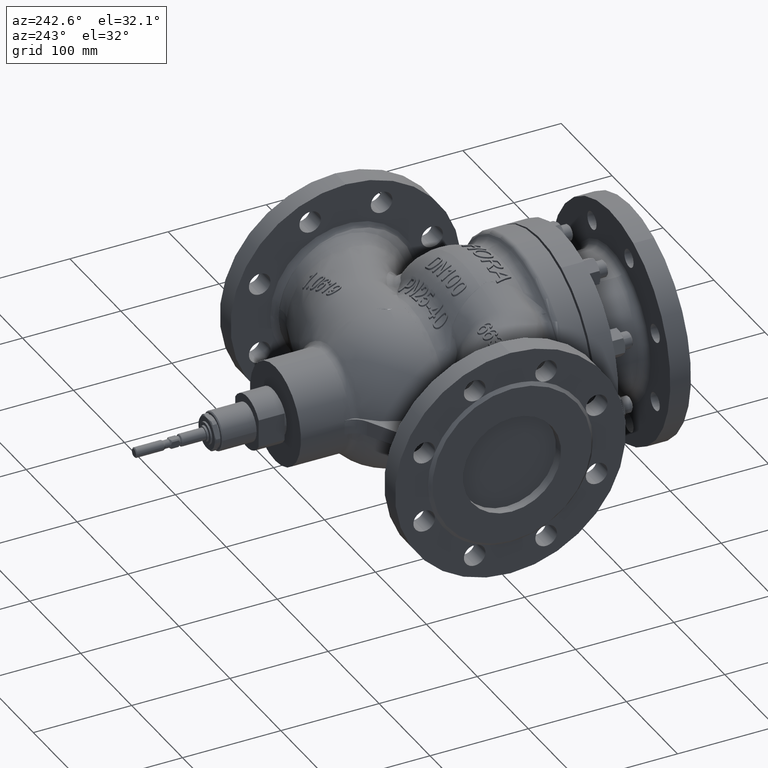
[diagram: clean part render]
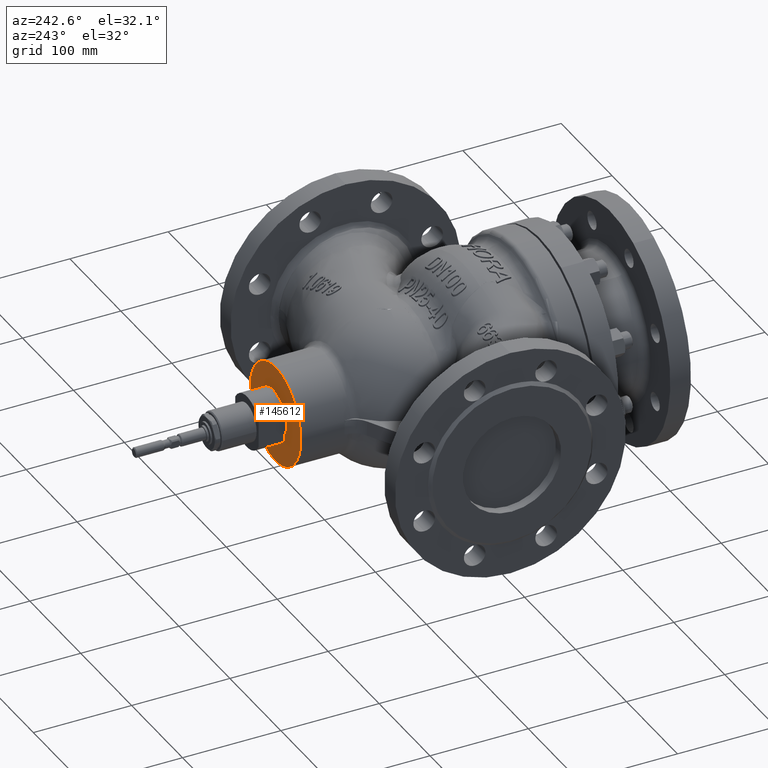
[diagram: same view with one face highlighted and labeled with its STEP entity id]
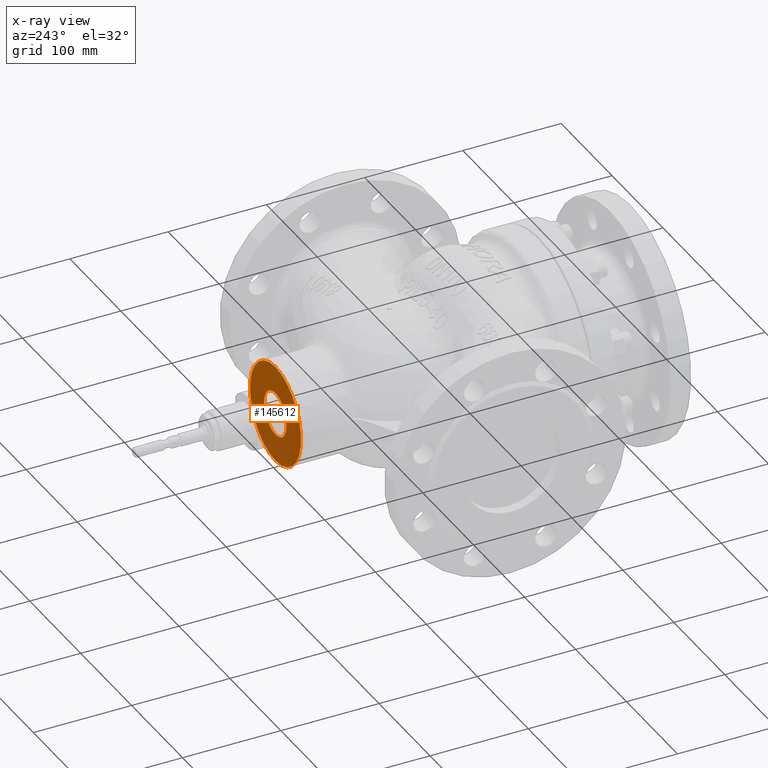
[diagram: x-ray of the same camera — body ghosted, the highlighted face saturated]
A machine part, auxiliary view. The second image highlights one B-rep face of the part: STEP entity #145612.
The next image is the same camera in x-ray: the body ghosted, the highlighted face saturated — about 4% of this face is hidden behind the body in this view.
In plain terms, the highlighted planar face has unit normal (0, -1, -0).
Its self-contained STEP definition (entity closure, byte-faithful):
#5683 = PLANE ( 'NONE',  #46874 ) ;
#10468 = ORIENTED_EDGE ( 'NONE', *, *, #80716, .F. ) ;
#12664 = DIRECTION ( 'NONE',  ( 0.0000000000000000000, 0.0000000000000000000, 1.000000000000000000 ) ) ;
#19539 = DIRECTION ( 'NONE',  ( 1.110223024625156500E-016, -1.000000000000000000, -1.236915711753496600E-016 ) ) ;
#21422 = CARTESIAN_POINT ( 'NONE',  ( -1.384303270667028500E-014, 150.0000000000000000, -49.99999999999999300 ) ) ;
#24541 = EDGE_CURVE ( 'NONE', #45467, #173635, #93840, .T. ) ;
#24570 = CARTESIAN_POINT ( 'NONE',  ( -1.665334536937734800E-014, 150.0000000000000000, 1.022706299161377100E-014 ) ) ;
#31704 = VERTEX_POINT ( 'NONE', #70584 ) ;
#32197 = CARTESIAN_POINT ( 'NONE',  ( -1.665334536937734800E-014, 150.0000000000000000, 1.022706299161377100E-014 ) ) ;
#34529 = CARTESIAN_POINT ( 'NONE',  ( -1.665334536937734800E-014, 150.0000000000000000, 1.022706299161377100E-014 ) ) ;
#37193 = CIRCLE ( 'NONE', #40043, 22.00000000000000000 ) ;
#38423 = DIRECTION ( 'NONE',  ( 0.0000000000000000000, 0.0000000000000000000, 1.000000000000000000 ) ) ;
#40043 = AXIS2_PLACEMENT_3D ( 'NONE', #34529, #131041, #48413 ) ;
#41091 = CIRCLE ( 'NONE', #161320, 50.00000000000000000 ) ;
#45467 = VERTEX_POINT ( 'NONE', #111253 ) ;
#46033 = DIRECTION ( 'NONE',  ( -1.110223024625156500E-016, 1.000000000000000000, 6.818041994409180400E-017 ) ) ;
#46874 = AXIS2_PLACEMENT_3D ( 'NONE', #32197, #19539, #116051 ) ;
#47422 = ORIENTED_EDGE ( 'NONE', *, *, #150305, .F. ) ;
#48413 = DIRECTION ( 'NONE',  ( 0.0000000000000000000, 0.0000000000000000000, -1.000000000000000000 ) ) ;
#51766 = EDGE_CURVE ( 'NONE', #31704, #76849, #41091, .T. ) ;
#69699 = FACE_OUTER_BOUND ( 'NONE', #165768, .T. ) ;
#70584 = CARTESIAN_POINT ( 'NONE',  ( -1.996626670240705000E-014, 150.0000000000000000, 50.00000000000000700 ) ) ;
#76849 = VERTEX_POINT ( 'NONE', #21422 ) ;
#80364 = CIRCLE ( 'NONE', #101323, 50.00000000000000000 ) ;
#80716 = EDGE_CURVE ( 'NONE', #76849, #31704, #80364, .T. ) ;
#88028 = CARTESIAN_POINT ( 'NONE',  ( -22.00000000000001800, 150.0000000000000000, 1.387778780781445700E-014 ) ) ;
#93840 = CIRCLE ( 'NONE', #158210, 22.00000000000000000 ) ;
#95290 = DIRECTION ( 'NONE',  ( 1.110223024625156500E-016, -1.000000000000000000, -6.818041994409180400E-017 ) ) ;
#101323 = AXIS2_PLACEMENT_3D ( 'NONE', #24570, #121059, #38423 ) ;
#111253 = CARTESIAN_POINT ( 'NONE',  ( 21.99999999999997900, 150.0000000000000000, 1.657201076593863300E-014 ) ) ;
#116051 = DIRECTION ( 'NONE',  ( 2.465190328815661900E-032, -1.236915711753496600E-016, 1.000000000000000000 ) ) ;
#121059 = DIRECTION ( 'NONE',  ( 1.110223024625156500E-016, -1.000000000000000000, -6.818041994409180400E-017 ) ) ;
#124364 = EDGE_LOOP ( 'NONE', ( #47422, #144577 ) ) ;
#128675 = CARTESIAN_POINT ( 'NONE',  ( -1.665334536937734800E-014, 150.0000000000000000, 1.022706299161377100E-014 ) ) ;
#131041 = DIRECTION ( 'NONE',  ( -1.110223024625156500E-016, 1.000000000000000000, 6.818041994409180400E-017 ) ) ;
#138800 = FACE_BOUND ( 'NONE', #124364, .T. ) ;
#142540 = DIRECTION ( 'NONE',  ( 0.0000000000000000000, 0.0000000000000000000, -1.000000000000000000 ) ) ;
#144577 = ORIENTED_EDGE ( 'NONE', *, *, #24541, .F. ) ;
#145612 = ADVANCED_FACE ( 'NONE', ( #138800, #69699 ), #5683, .F. ) ;
#150305 = EDGE_CURVE ( 'NONE', #173635, #45467, #37193, .T. ) ;
#158210 = AXIS2_PLACEMENT_3D ( 'NONE', #128675, #46033, #142540 ) ;
#161320 = AXIS2_PLACEMENT_3D ( 'NONE', #177943, #95290, #12664 ) ;
#164464 = ORIENTED_EDGE ( 'NONE', *, *, #51766, .F. ) ;
#165768 = EDGE_LOOP ( 'NONE', ( #10468, #164464 ) ) ;
#173635 = VERTEX_POINT ( 'NONE', #88028 ) ;
#177943 = CARTESIAN_POINT ( 'NONE',  ( -1.665334536937734800E-014, 150.0000000000000000, 1.022706299161377100E-014 ) ) ;